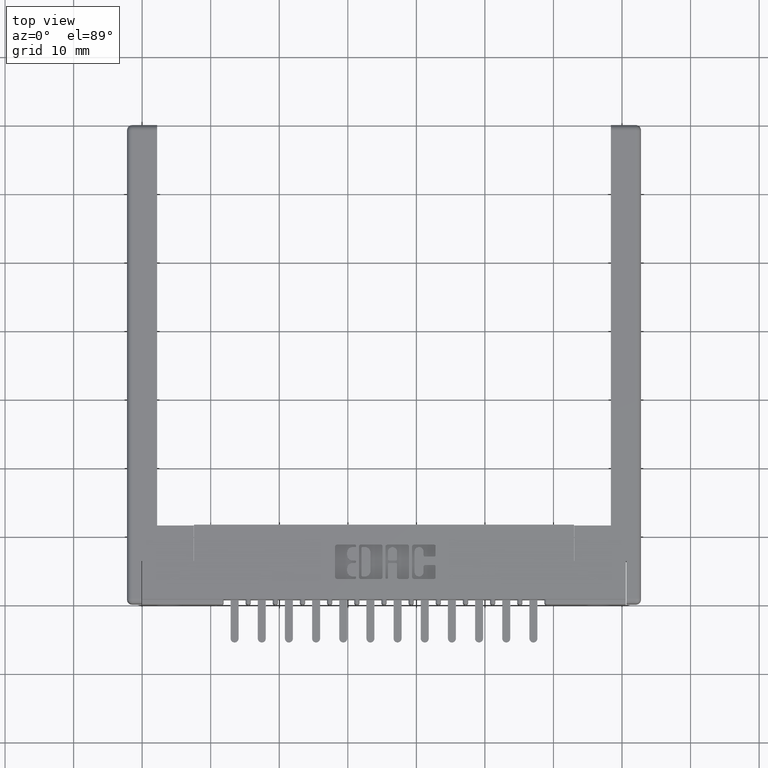
[diagram: clean part render]
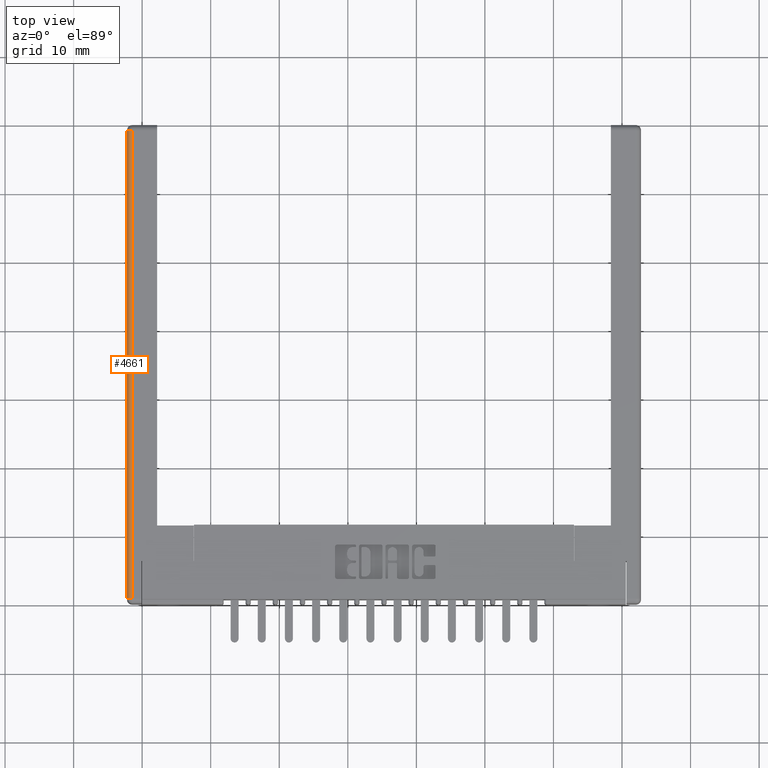
[diagram: same view with one face highlighted and labeled with its STEP entity id]
A machine part, top view. The second image highlights one B-rep face of the part: STEP entity #4661.
In plain terms, the highlighted cylindrical surface (edge-blend (fillet) strip) has radius 0.762 mm, axis along (0, 1, 0).
Its self-contained STEP definition (entity closure, byte-faithful):
#474 = CARTESIAN_POINT ( 'NONE',  ( 0.02999999999999999889, 0.0000000000000000000, -0.02999999999999999889 ) ) ;
#556 = CYLINDRICAL_SURFACE ( 'NONE', #8314, 0.02999999999999999889 ) ;
#695 = EDGE_LOOP ( 'NONE', ( #16735, #15607, #6838, #2902 ) ) ;
#2451 = EDGE_CURVE ( 'NONE', #16155, #8083, #11547, .T. ) ;
#2481 = DIRECTION ( 'NONE',  ( 0.0000000000000000000, 0.0000000000000000000, -1.000000000000000000 ) ) ;
#2764 = CARTESIAN_POINT ( 'NONE',  ( 0.0000000000000000000, 0.02999999999999998848, -0.02999999999999999889 ) ) ;
#2902 = ORIENTED_EDGE ( 'NONE', *, *, #17069, .F. ) ;
#3041 = DIRECTION ( 'NONE',  ( 0.0000000000000000000, -1.000000000000000000, 0.0000000000000000000 ) ) ;
#3074 = VERTEX_POINT ( 'NONE', #5935 ) ;
#3266 = DIRECTION ( 'NONE',  ( 0.0000000000000000000, 0.0000000000000000000, 1.000000000000000000 ) ) ;
#3932 = EDGE_CURVE ( 'NONE', #8083, #8305, #13164, .T. ) ;
#4062 = AXIS2_PLACEMENT_3D ( 'NONE', #15554, #7087, #15642 ) ;
#4376 = VECTOR ( 'NONE', #13077, 39.37007874015748143 ) ;
#4661 = ADVANCED_FACE ( 'NONE', ( #7409 ), #556, .T. ) ;
#5935 = CARTESIAN_POINT ( 'NONE',  ( 0.02999999999999999889, 2.719999999999999751, 0.0000000000000000000 ) ) ;
#6838 = ORIENTED_EDGE ( 'NONE', *, *, #2451, .F. ) ;
#7087 = DIRECTION ( 'NONE',  ( -0.0000000000000000000, -1.000000000000000000, 0.0000000000000000000 ) ) ;
#7409 = FACE_OUTER_BOUND ( 'NONE', #695, .T. ) ;
#8083 = VERTEX_POINT ( 'NONE', #2764 ) ;
#8255 = DIRECTION ( 'NONE',  ( 0.0000000000000000000, -1.000000000000000000, 0.0000000000000000000 ) ) ;
#8305 = VERTEX_POINT ( 'NONE', #15405 ) ;
#8314 = AXIS2_PLACEMENT_3D ( 'NONE', #474, #11394, #3266 ) ;
#8526 = VECTOR ( 'NONE', #3041, 39.37007874015748143 ) ;
#9702 = CARTESIAN_POINT ( 'NONE',  ( 0.02999999999999999889, 0.02999999999999998848, -0.02999999999999999889 ) ) ;
#11394 = DIRECTION ( 'NONE',  ( 0.0000000000000000000, 1.000000000000000000, 0.0000000000000000000 ) ) ;
#11403 = CARTESIAN_POINT ( 'NONE',  ( 0.02999999999999999889, 0.02999999999999998848, 0.0000000000000000000 ) ) ;
#11547 = CIRCLE ( 'NONE', #12417, 0.02999999999999999889 ) ;
#11611 = LINE ( 'NONE', #12867, #8526 ) ;
#12417 = AXIS2_PLACEMENT_3D ( 'NONE', #9702, #8255, #2481 ) ;
#12850 = EDGE_CURVE ( 'NONE', #3074, #8305, #13561, .T. ) ;
#12867 = CARTESIAN_POINT ( 'NONE',  ( 0.02999999999999999889, 0.0000000000000000000, 0.0000000000000000000 ) ) ;
#13077 = DIRECTION ( 'NONE',  ( -0.0000000000000000000, 1.000000000000000000, -0.0000000000000000000 ) ) ;
#13164 = LINE ( 'NONE', #16051, #4376 ) ;
#13561 = CIRCLE ( 'NONE', #4062, 0.02999999999999999889 ) ;
#15405 = CARTESIAN_POINT ( 'NONE',  ( 0.0000000000000000000, 2.719999999999999751, -0.02999999999999999889 ) ) ;
#15554 = CARTESIAN_POINT ( 'NONE',  ( 0.02999999999999999889, 2.719999999999999751, -0.02999999999999999889 ) ) ;
#15607 = ORIENTED_EDGE ( 'NONE', *, *, #3932, .F. ) ;
#15642 = DIRECTION ( 'NONE',  ( 0.0000000000000000000, 0.0000000000000000000, 1.000000000000000000 ) ) ;
#16051 = CARTESIAN_POINT ( 'NONE',  ( 0.0000000000000000000, 2.750000000000000000, -0.02999999999999999889 ) ) ;
#16155 = VERTEX_POINT ( 'NONE', #11403 ) ;
#16735 = ORIENTED_EDGE ( 'NONE', *, *, #12850, .T. ) ;
#17069 = EDGE_CURVE ( 'NONE', #3074, #16155, #11611, .T. ) ;